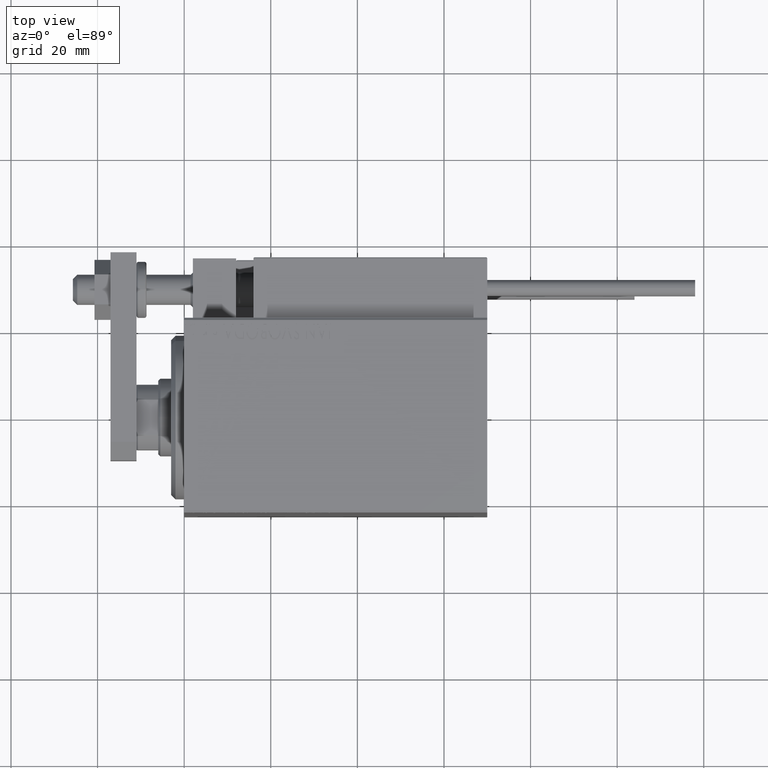
[diagram: clean part render]
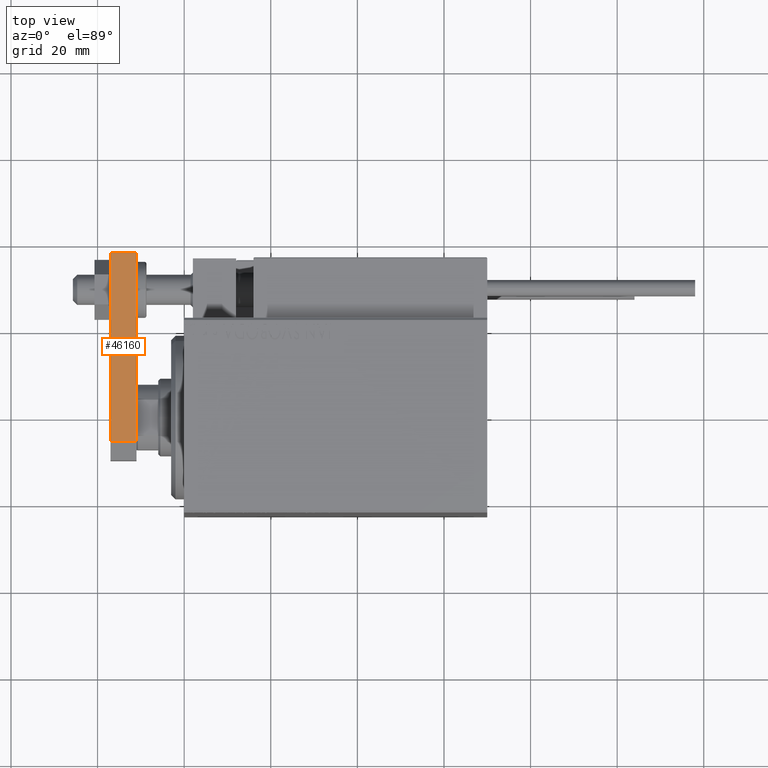
[diagram: same view with one face highlighted and labeled with its STEP entity id]
A machine part, top view. The second image highlights one B-rep face of the part: STEP entity #46160.
In plain terms, the highlighted planar face has unit normal (-0, -0, -1).
Its self-contained STEP definition (entity closure, byte-faithful):
#536 = CARTESIAN_POINT ( 'NONE',  ( 10.00000000000000533, 0.000000000000000000, 0.000000000000000000 ) ) ;
#2897 = CARTESIAN_POINT ( 'NONE',  ( 10.00000000000000533, 4.239999999999986890, 6.000000000000000000 ) ) ;
#4416 = VERTEX_POINT ( 'NONE', #7362 ) ;
#4479 = EDGE_LOOP ( 'NONE', ( #49305, #18770, #32681, #20494 ) ) ;
#5473 = EDGE_CURVE ( 'NONE', #36067, #26482, #8622, .T. ) ;
#6457 = VECTOR ( 'NONE', #48071, 1000.000000000000000 ) ;
#6629 = LINE ( 'NONE', #22157, #35983 ) ;
#7362 = CARTESIAN_POINT ( 'NONE',  ( 10.00000000000000533, 4.239999999999986890, 0.000000000000000000 ) ) ;
#8622 = LINE ( 'NONE', #24153, #6457 ) ;
#12497 = DIRECTION ( 'NONE',  ( -7.228014483236695816E-17, 1.000000000000000000, 0.000000000000000000 ) ) ;
#14808 = CARTESIAN_POINT ( 'NONE',  ( 10.00000000000000533, 4.239999999999986890, 6.000000000000000000 ) ) ;
#15009 = VECTOR ( 'NONE', #12497, 1000.000000000000000 ) ;
#16984 = FACE_OUTER_BOUND ( 'NONE', #4479, .T. ) ;
#18770 = ORIENTED_EDGE ( 'NONE', *, *, #42126, .T. ) ;
#20494 = ORIENTED_EDGE ( 'NONE', *, *, #38299, .F. ) ;
#20665 = VECTOR ( 'NONE', #30317, 1000.000000000000000 ) ;
#22157 = CARTESIAN_POINT ( 'NONE',  ( 10.00000000000000178, 48.00000000000000000, 6.000000000000000000 ) ) ;
#24153 = CARTESIAN_POINT ( 'NONE',  ( 10.00000000000000533, 0.000000000000000000, 6.000000000000000000 ) ) ;
#25013 = CARTESIAN_POINT ( 'NONE',  ( 10.00000000000000178, 48.00000000000000000, 0.000000000000000000 ) ) ;
#26482 = VERTEX_POINT ( 'NONE', #47418 ) ;
#26762 = LINE ( 'NONE', #14808, #20665 ) ;
#27545 = EDGE_CURVE ( 'NONE', #4416, #30517, #39735, .T. ) ;
#28936 = PLANE ( 'NONE',  #30532 ) ;
#30317 = DIRECTION ( 'NONE',  ( 0.000000000000000000, 0.000000000000000000, -1.000000000000000000 ) ) ;
#30517 = VERTEX_POINT ( 'NONE', #25013 ) ;
#30532 = AXIS2_PLACEMENT_3D ( 'NONE', #47780, #33238, #36567 ) ;
#32681 = ORIENTED_EDGE ( 'NONE', *, *, #27545, .T. ) ;
#33238 = DIRECTION ( 'NONE',  ( -1.000000000000000000, -7.228014483236695816E-17, 0.000000000000000000 ) ) ;
#35983 = VECTOR ( 'NONE', #37675, 1000.000000000000000 ) ;
#36067 = VERTEX_POINT ( 'NONE', #2897 ) ;
#36567 = DIRECTION ( 'NONE',  ( 7.228014483236695816E-17, -1.000000000000000000, 0.000000000000000000 ) ) ;
#37675 = DIRECTION ( 'NONE',  ( -0.000000000000000000, -0.000000000000000000, -1.000000000000000000 ) ) ;
#38299 = EDGE_CURVE ( 'NONE', #26482, #30517, #6629, .T. ) ;
#39735 = LINE ( 'NONE', #536, #15009 ) ;
#42126 = EDGE_CURVE ( 'NONE', #36067, #4416, #26762, .T. ) ;
#46160 = ADVANCED_FACE ( 'NONE', ( #16984 ), #28936, .F. ) ;
#47418 = CARTESIAN_POINT ( 'NONE',  ( 10.00000000000000178, 48.00000000000000000, 6.000000000000000000 ) ) ;
#47780 = CARTESIAN_POINT ( 'NONE',  ( 10.00000000000000533, 0.000000000000000000, 6.000000000000000000 ) ) ;
#48071 = DIRECTION ( 'NONE',  ( -7.228014483236695816E-17, 1.000000000000000000, 0.000000000000000000 ) ) ;
#49305 = ORIENTED_EDGE ( 'NONE', *, *, #5473, .F. ) ;